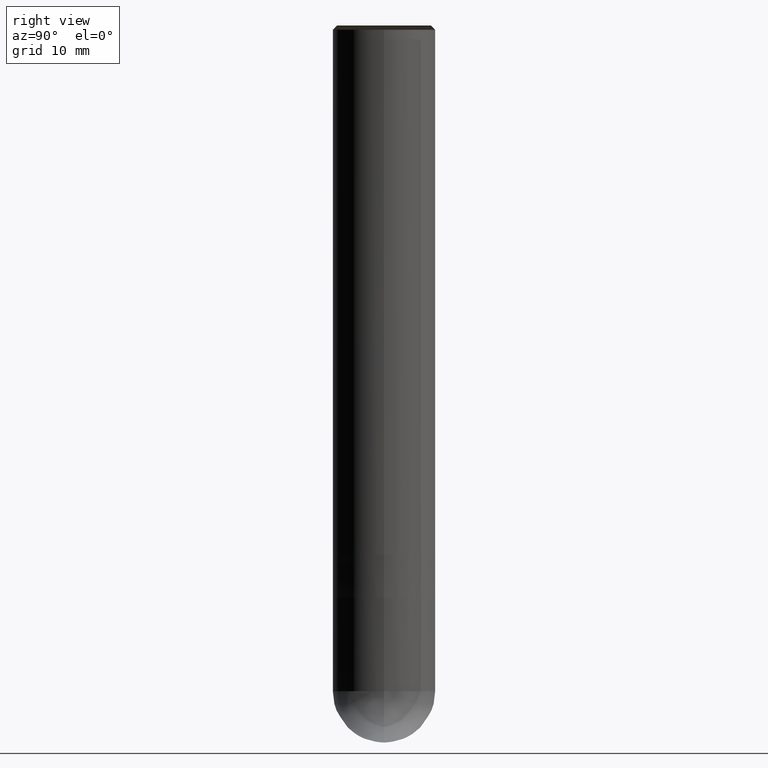
[diagram: clean part render]
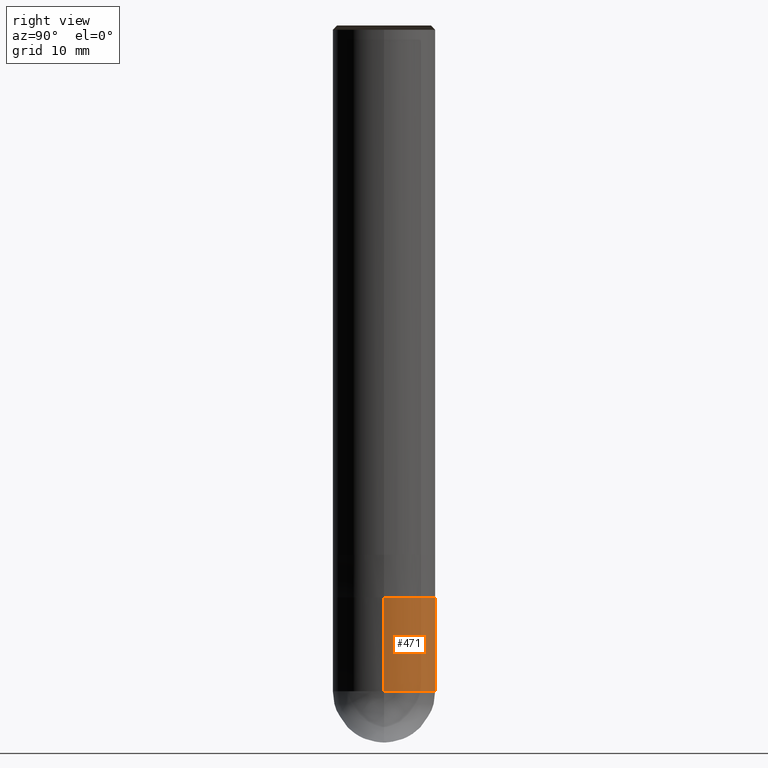
[diagram: same view with one face highlighted and labeled with its STEP entity id]
A machine part, right view. The second image highlights one B-rep face of the part: STEP entity #471.
In plain terms, the highlighted face is a freeform B-spline surface patch.
Its self-contained STEP definition (entity closure, byte-faithful):
#386=CARTESIAN_POINT('',(6.0,0.0,-16.0));
#387=CARTESIAN_POINT('',(6.0,6.0,-16.0));
#388=CARTESIAN_POINT('',(0.0,6.0,-16.0));
#389=CARTESIAN_POINT('',(-6.0,6.0,-16.0));
#390=CARTESIAN_POINT('',(-6.0,0.0,-16.0));
#391=CARTESIAN_POINT('',(6.0,0.0,-5.0));
#392=CARTESIAN_POINT('',(6.0,6.0,-5.0));
#393=CARTESIAN_POINT('',(0.0,6.0,-5.0));
#394=CARTESIAN_POINT('',(-6.0,6.0,-5.0));
#395=CARTESIAN_POINT('',(-6.0,0.0,-5.0));
#452=(
BOUNDED_SURFACE()
B_SPLINE_SURFACE(1,2,(
(#386,#387,#388,#389,#390),
(#391,#392,#393,#394,#395)
), .UNSPECIFIED.,.F.,.F.,.F.)
B_SPLINE_SURFACE_WITH_KNOTS((2,2),(3,2,3),(
0.0,1.0),(
0.0,0.5,1.0), .UNSPECIFIED.)
GEOMETRIC_REPRESENTATION_ITEM()
RATIONAL_B_SPLINE_SURFACE(((1.0,0.707106781187,1.0,0.707106781187,1.0),
(1.0,0.707106781187,1.0,0.707106781187,1.0)
))
REPRESENTATION_ITEM('')
SURFACE()
);
#453=(
BOUNDED_CURVE()
B_SPLINE_CURVE(2,(#390,#389,#388,#387,#386),.UNSPECIFIED.,.F.,.F.)
B_SPLINE_CURVE_WITH_KNOTS((3,2,3),
(0.0,0.5,1.0),.UNSPECIFIED.)
CURVE()
GEOMETRIC_REPRESENTATION_ITEM()
RATIONAL_B_SPLINE_CURVE((1.0,0.707106781187,1.0,0.707106781187,1.0))
REPRESENTATION_ITEM('')
);
#454=(
BOUNDED_CURVE()
B_SPLINE_CURVE(1,(#386,#391),.UNSPECIFIED.,.F.,.F.)
B_SPLINE_CURVE_WITH_KNOTS((2,2),
(0.0,1.0),.UNSPECIFIED.)
CURVE()
GEOMETRIC_REPRESENTATION_ITEM()
RATIONAL_B_SPLINE_CURVE((1.0,1.0))
REPRESENTATION_ITEM('')
);
#455=(
BOUNDED_CURVE()
B_SPLINE_CURVE(2,(#391,#392,#393,#394,#395),.UNSPECIFIED.,.F.,.F.)
B_SPLINE_CURVE_WITH_KNOTS((3,2,3),
(0.0,0.5,1.0),.UNSPECIFIED.)
CURVE()
GEOMETRIC_REPRESENTATION_ITEM()
RATIONAL_B_SPLINE_CURVE((1.0,0.707106781187,1.0,0.707106781187,1.0))
REPRESENTATION_ITEM('')
);
#456=(
BOUNDED_CURVE()
B_SPLINE_CURVE(1,(#395,#390),.UNSPECIFIED.,.F.,.F.)
B_SPLINE_CURVE_WITH_KNOTS((2,2),
(0.0,1.0),.UNSPECIFIED.)
CURVE()
GEOMETRIC_REPRESENTATION_ITEM()
RATIONAL_B_SPLINE_CURVE((1.0,1.0))
REPRESENTATION_ITEM('')
);
#457=VERTEX_POINT('',#386);
#458=VERTEX_POINT('',#390);
#459=VERTEX_POINT('',#391);
#460=VERTEX_POINT('',#395);
#461=EDGE_CURVE('',#458,#457,#453,.T.);
#462=EDGE_CURVE('',#457,#459,#454,.T.);
#463=EDGE_CURVE('',#459,#460,#455,.T.);
#464=EDGE_CURVE('',#460,#458,#456,.T.);
#465=ORIENTED_EDGE('',*,*,#461,.T.);
#466=ORIENTED_EDGE('',*,*,#462,.T.);
#467=ORIENTED_EDGE('',*,*,#463,.T.);
#468=ORIENTED_EDGE('',*,*,#464,.T.);
#469=EDGE_LOOP('',(#465,#466,#467,#468));
#470=FACE_OUTER_BOUND('',#469,.T.);
#471=ADVANCED_FACE('',(#470),#452,.T.);